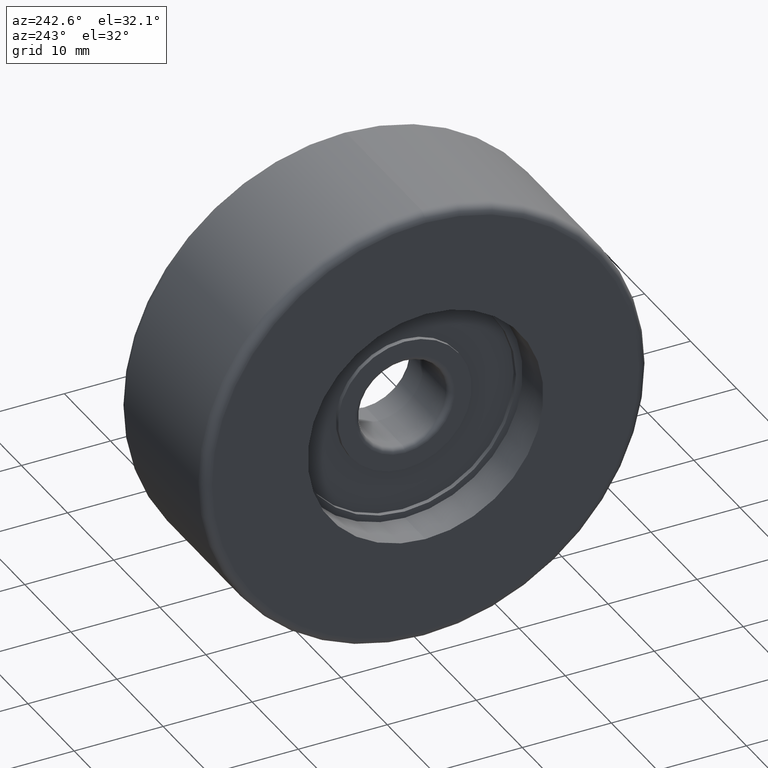
[diagram: clean part render]
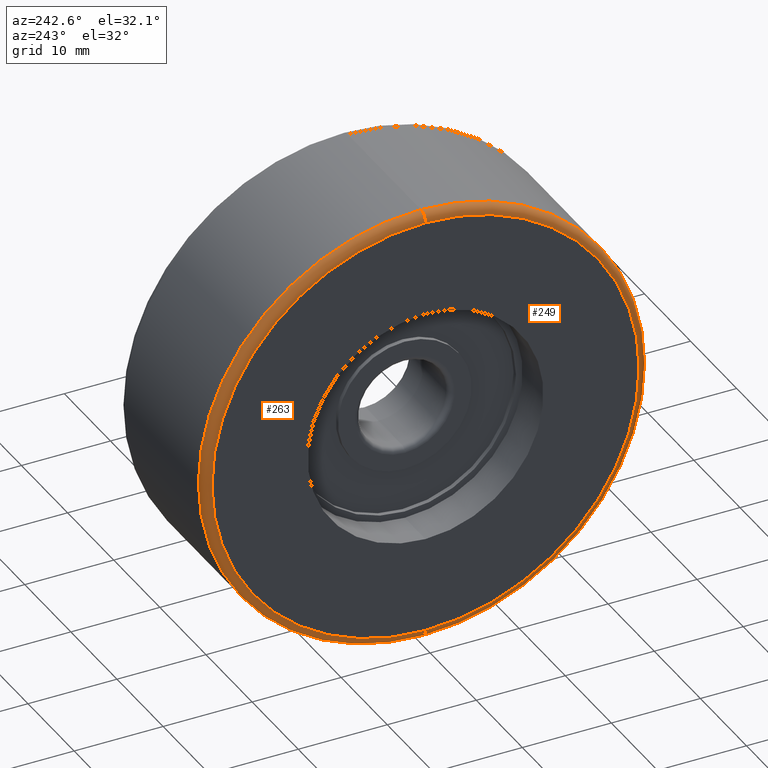
[diagram: same view with one multi-face feature highlighted, each face labeled with its STEP entity id]
A machine part, auxiliary view. The highlighted faces form ONE feature: a constant-radius fillet chain: 2 tangent blend faces with common blend radius 1 mm. The faces share edges in the B-rep.
Their STEP definitions:
[1] entity #249 (Torus):
#44 = ORIENTED_EDGE ( 'NONE', *, *, #1064, .F. ) ;
#45 = DIRECTION ( 'NONE',  ( 0.0000000000000000000, 1.224646799147353454E-16, 1.000000000000000000 ) ) ;
#132 = VERTEX_POINT ( 'NONE', #870 ) ;
#197 = CIRCLE ( 'NONE', #539, 1.000000000000000888 ) ;
#198 = VERTEX_POINT ( 'NONE', #1223 ) ;
#224 = TOROIDAL_SURFACE ( 'NONE', #1097, 24.00000000000000000, 1.000000000000000000 ) ;
#241 = FACE_OUTER_BOUND ( 'NONE', #943, .T. ) ;
#249 = ADVANCED_FACE ( 'NONE', ( #241 ), #224, .T. ) ;
#322 = VERTEX_POINT ( 'NONE', #477 ) ;
#333 = CIRCLE ( 'NONE', #1308, 1.000000000000000888 ) ;
#341 = DIRECTION ( 'NONE',  ( 0.0000000000000000000, -1.000000000000000000, 0.0000000000000000000 ) ) ;
#343 = DIRECTION ( 'NONE',  ( 1.000000000000000000, 0.0000000000000000000, 0.0000000000000000000 ) ) ;
#348 = CARTESIAN_POINT ( 'NONE',  ( -8.000000000000000000, 0.0000000000000000000, 0.0000000000000000000 ) ) ;
#405 = DIRECTION ( 'NONE',  ( 0.0000000000000000000, 1.000000000000000000, -1.224646799147353207E-16 ) ) ;
#446 = CARTESIAN_POINT ( 'NONE',  ( -8.000000000000000000, 0.0000000000000000000, -24.00000000000000000 ) ) ;
#477 = CARTESIAN_POINT ( 'NONE',  ( -9.000000000000000000, 3.000384657911015469E-15, 24.00000000000000000 ) ) ;
#515 = DIRECTION ( 'NONE',  ( 0.0000000000000000000, 0.0000000000000000000, -1.000000000000000000 ) ) ;
#531 = ORIENTED_EDGE ( 'NONE', *, *, #1360, .T. ) ;
#539 = AXIS2_PLACEMENT_3D ( 'NONE', #446, #341, #1110 ) ;
#540 = EDGE_CURVE ( 'NONE', #322, #198, #333, .T. ) ;
#582 = DIRECTION ( 'NONE',  ( 0.0000000000000000000, 0.0000000000000000000, -1.000000000000000000 ) ) ;
#621 = AXIS2_PLACEMENT_3D ( 'NONE', #348, #343, #1334 ) ;
#628 = CIRCLE ( 'NONE', #987, 24.00000000000000000 ) ;
#726 = CARTESIAN_POINT ( 'NONE',  ( -8.000000000000000000, 2.939152317953647894E-15, 24.00000000000000000 ) ) ;
#728 = CIRCLE ( 'NONE', #621, 25.00000000000000000 ) ;
#738 = ORIENTED_EDGE ( 'NONE', *, *, #798, .F. ) ;
#798 = EDGE_CURVE ( 'NONE', #198, #132, #728, .T. ) ;
#825 = ORIENTED_EDGE ( 'NONE', *, *, #540, .F. ) ;
#870 = CARTESIAN_POINT ( 'NONE',  ( -8.000000000000000000, 0.0000000000000000000, -25.00000000000000000 ) ) ;
#912 = VERTEX_POINT ( 'NONE', #1027 ) ;
#943 = EDGE_LOOP ( 'NONE', ( #825, #44, #531, #738 ) ) ;
#987 = AXIS2_PLACEMENT_3D ( 'NONE', #1174, #1278, #515 ) ;
#1027 = CARTESIAN_POINT ( 'NONE',  ( -9.000000000000000000, 0.0000000000000000000, -24.00000000000000000 ) ) ;
#1064 = EDGE_CURVE ( 'NONE', #912, #322, #628, .T. ) ;
#1097 = AXIS2_PLACEMENT_3D ( 'NONE', #1468, #1237, #582 ) ;
#1110 = DIRECTION ( 'NONE',  ( 0.0000000000000000000, 0.0000000000000000000, -1.000000000000000000 ) ) ;
#1174 = CARTESIAN_POINT ( 'NONE',  ( -9.000000000000000000, 0.0000000000000000000, 0.0000000000000000000 ) ) ;
#1223 = CARTESIAN_POINT ( 'NONE',  ( -8.000000000000000000, 3.061616997868383043E-15, 25.00000000000000000 ) ) ;
#1237 = DIRECTION ( 'NONE',  ( 1.000000000000000000, 0.0000000000000000000, 0.0000000000000000000 ) ) ;
#1278 = DIRECTION ( 'NONE',  ( -1.000000000000000000, -0.0000000000000000000, -0.0000000000000000000 ) ) ;
#1308 = AXIS2_PLACEMENT_3D ( 'NONE', #726, #405, #45 ) ;
#1334 = DIRECTION ( 'NONE',  ( 0.0000000000000000000, 0.0000000000000000000, -1.000000000000000000 ) ) ;
#1360 = EDGE_CURVE ( 'NONE', #912, #132, #197, .T. ) ;
#1468 = CARTESIAN_POINT ( 'NONE',  ( -8.000000000000000000, 0.0000000000000000000, 0.0000000000000000000 ) ) ;
[2] entity #263 (Torus):
#3 = DIRECTION ( 'NONE',  ( 1.000000000000000000, 0.0000000000000000000, 0.0000000000000000000 ) ) ;
#45 = DIRECTION ( 'NONE',  ( 0.0000000000000000000, 1.224646799147353454E-16, 1.000000000000000000 ) ) ;
#122 = TOROIDAL_SURFACE ( 'NONE', #1407, 24.00000000000000000, 1.000000000000000000 ) ;
#132 = VERTEX_POINT ( 'NONE', #870 ) ;
#197 = CIRCLE ( 'NONE', #539, 1.000000000000000888 ) ;
#198 = VERTEX_POINT ( 'NONE', #1223 ) ;
#250 = ORIENTED_EDGE ( 'NONE', *, *, #1360, .F. ) ;
#254 = DIRECTION ( 'NONE',  ( 0.0000000000000000000, 0.0000000000000000000, -1.000000000000000000 ) ) ;
#263 = ADVANCED_FACE ( 'NONE', ( #435 ), #122, .T. ) ;
#322 = VERTEX_POINT ( 'NONE', #477 ) ;
#329 = EDGE_CURVE ( 'NONE', #132, #198, #1453, .T. ) ;
#333 = CIRCLE ( 'NONE', #1308, 1.000000000000000888 ) ;
#341 = DIRECTION ( 'NONE',  ( 0.0000000000000000000, -1.000000000000000000, 0.0000000000000000000 ) ) ;
#376 = DIRECTION ( 'NONE',  ( 0.0000000000000000000, 0.0000000000000000000, -1.000000000000000000 ) ) ;
#405 = DIRECTION ( 'NONE',  ( 0.0000000000000000000, 1.000000000000000000, -1.224646799147353207E-16 ) ) ;
#435 = FACE_OUTER_BOUND ( 'NONE', #673, .T. ) ;
#446 = CARTESIAN_POINT ( 'NONE',  ( -8.000000000000000000, 0.0000000000000000000, -24.00000000000000000 ) ) ;
#456 = CARTESIAN_POINT ( 'NONE',  ( -8.000000000000000000, 0.0000000000000000000, 0.0000000000000000000 ) ) ;
#477 = CARTESIAN_POINT ( 'NONE',  ( -9.000000000000000000, 3.000384657911015469E-15, 24.00000000000000000 ) ) ;
#492 = CARTESIAN_POINT ( 'NONE',  ( -9.000000000000000000, 0.0000000000000000000, 0.0000000000000000000 ) ) ;
#528 = ORIENTED_EDGE ( 'NONE', *, *, #540, .T. ) ;
#539 = AXIS2_PLACEMENT_3D ( 'NONE', #446, #341, #1110 ) ;
#540 = EDGE_CURVE ( 'NONE', #322, #198, #333, .T. ) ;
#673 = EDGE_LOOP ( 'NONE', ( #974, #528, #1202, #250 ) ) ;
#688 = AXIS2_PLACEMENT_3D ( 'NONE', #492, #1358, #376 ) ;
#705 = CIRCLE ( 'NONE', #688, 24.00000000000000000 ) ;
#726 = CARTESIAN_POINT ( 'NONE',  ( -8.000000000000000000, 2.939152317953647894E-15, 24.00000000000000000 ) ) ;
#870 = CARTESIAN_POINT ( 'NONE',  ( -8.000000000000000000, 0.0000000000000000000, -25.00000000000000000 ) ) ;
#911 = CARTESIAN_POINT ( 'NONE',  ( -8.000000000000000000, 0.0000000000000000000, 0.0000000000000000000 ) ) ;
#912 = VERTEX_POINT ( 'NONE', #1027 ) ;
#974 = ORIENTED_EDGE ( 'NONE', *, *, #1442, .F. ) ;
#1027 = CARTESIAN_POINT ( 'NONE',  ( -9.000000000000000000, 0.0000000000000000000, -24.00000000000000000 ) ) ;
#1069 = AXIS2_PLACEMENT_3D ( 'NONE', #456, #3, #1123 ) ;
#1110 = DIRECTION ( 'NONE',  ( 0.0000000000000000000, 0.0000000000000000000, -1.000000000000000000 ) ) ;
#1123 = DIRECTION ( 'NONE',  ( 0.0000000000000000000, 0.0000000000000000000, -1.000000000000000000 ) ) ;
#1202 = ORIENTED_EDGE ( 'NONE', *, *, #329, .F. ) ;
#1223 = CARTESIAN_POINT ( 'NONE',  ( -8.000000000000000000, 3.061616997868383043E-15, 25.00000000000000000 ) ) ;
#1242 = DIRECTION ( 'NONE',  ( 1.000000000000000000, 0.0000000000000000000, 0.0000000000000000000 ) ) ;
#1308 = AXIS2_PLACEMENT_3D ( 'NONE', #726, #405, #45 ) ;
#1358 = DIRECTION ( 'NONE',  ( -1.000000000000000000, -0.0000000000000000000, -0.0000000000000000000 ) ) ;
#1360 = EDGE_CURVE ( 'NONE', #912, #132, #197, .T. ) ;
#1407 = AXIS2_PLACEMENT_3D ( 'NONE', #911, #1242, #254 ) ;
#1442 = EDGE_CURVE ( 'NONE', #322, #912, #705, .T. ) ;
#1453 = CIRCLE ( 'NONE', #1069, 25.00000000000000000 ) ;